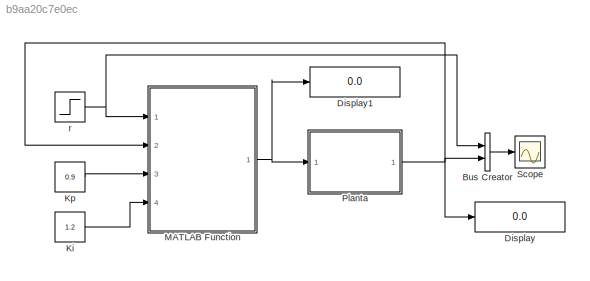
MODEL slx_b9aa20c7e0ec
KIND model
CONFIG AbsTol = auto
CONFIG FixedStep = auto
CONFIG MaxStep = auto
CONFIG MinStep = auto
CONFIG RelTol = 1e-3
CONFIG SampleTimeConstraint = Unconstrained
CONFIG Solver = ode5
CONFIG SolverMode = Auto
CONFIG SolverName = ode5
CONFIG StartTime = 0.0
CONFIG StopTime = inf
BLOCK [BusCreator] Bus Creator
  DisplayOption = bar
  Inputs = 2
  Ports = [2, 1]
BLOCK [Display] Display
  Decimation = 1
  Ports = [1]
BLOCK [Display] Display1
  Decimation = 1
  Ports = [1]
BLOCK [Constant] Ki
  Value = 1.2
BLOCK [Constant] Kp
  Value = 0.9
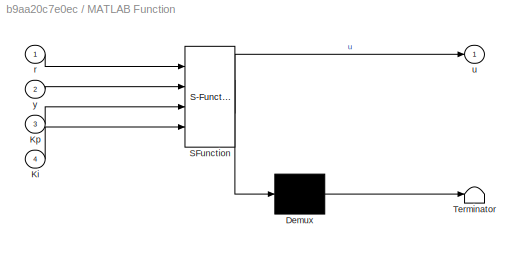
BLOCK [SubSystem] MATLAB Function
  ErrorFcn = Stateflow.Translate.translate
  PermitHierarchicalResolution = ExplicitOnly
  Ports = [4, 1]
  RequestExecContextInheritance = off
  SFBlockType = MATLAB Function
  TreatAsAtomicUnit = on
BLOCK [Demux] MATLAB Function/ Demux 
  Outputs = 1
  Ports = [1, 1]
BLOCK [S-Function] MATLAB Function/ SFunction 
  FunctionName = sf_sfun
  PortCounts = [4 2]
  Ports = [4, 2]
  Tag = Stateflow S-Function lab4_2 2
BLOCK [Terminator] MATLAB Function/ Terminator 
BLOCK [Inport] MATLAB Function/Ki
  IconDisplay = Port number
  Port = 4
BLOCK [Inport] MATLAB Function/Kp
  IconDisplay = Port number
  Port = 3
BLOCK [Inport] MATLAB Function/r
  IconDisplay = Port number
BLOCK [Outport] MATLAB Function/u
  IconDisplay = Port number
BLOCK [Inport] MATLAB Function/y
  IconDisplay = Port number
  Port = 2
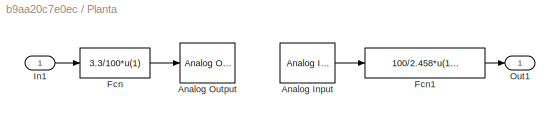
BLOCK [SubSystem] Planta
  Ports = [1, 1]
  RequestExecContextInheritance = off
BLOCK [Reference] Planta/Analog Input  REF=rtwinlib/Analog Input
  AttributesFormatString = National Instruments\nPCI-6229 [auto]
  Channels = 1
  DataType = 1
  DrvAddress = 4294967295
  DrvName = National_Instruments/PCI-6229
  DrvOptions = [0 0 0 0 0]
  MaxMissedTicks = 10
  Ports = [0, 1]
  RangeMode = 1
  SampleTime = 0.01
  ShowMissedTicks = off
  SourceBlock = rtwinlib/Analog Input
  SourceType = RTWin Analog Input
  VoltRange = 1
  YieldWhenWaiting = off
BLOCK [Reference] Planta/Analog Output  REF=rtwinlib/Analog Output
  AttributesFormatString = National Instruments\nPCI-6229 [auto]
  Channels = 1
  DrvAddress = 4294967295
  DrvName = National_Instruments/PCI-6229
  DrvOptions = [0 0 0 0 0]
  FinalValue = []
  InitialValue = []
  MaxMissedTicks = 10
  Ports = [1]
  RangeMode = 1
  SampleTime = 0.01
  ShowMissedTicks = off
  SourceBlock = rtwinlib/Analog Output
  SourceType = RTWin Analog Output
  VoltRange = 1
  YieldWhenWaiting = off
BLOCK [Fcn] Planta/Fcn
  Expr = 3.3/100*u(1)
  SampleTime = 0.01
BLOCK [Fcn] Planta/Fcn1
  Expr = 100/2.458*u(1)-24.41
  SampleTime = 0.01
BLOCK [Inport] Planta/In1
  IconDisplay = Port number
BLOCK [Outport] Planta/Out1
  IconDisplay = Port number
BLOCK [Scope] Scope
  DataFormat = StructureWithTime
  Floating = off
  LimitDataPoints = off
  NumInputPorts = 1
  Ports = [1]
  SampleTime = 0
  SaveName = signals
  SaveToWorkspace = on
  YMax = 120
  YMin = 0
BLOCK [Step] r
  After = 60
  SampleTime = 0.01
  Time = 0
LINE Bus Creator:1 -> Scope:1
LINE Ki:1 -> MATLAB Function:4
LINE Kp:1 -> MATLAB Function:3
NET MATLAB Function:1 -> Display1:1, Planta:1
LINE Planta/Analog Input:1 -> Planta/Fcn1:1
LINE Planta/Fcn1:1 -> Planta/Out1:1
LINE Planta/Fcn:1 -> Planta/Analog Output:1
LINE Planta/In1:1 -> Planta/Fcn:1
NET Planta:1 -> Bus Creator:2, Display:1, MATLAB Function:2
NET r:1 -> Bus Creator:1, MATLAB Function:1
note: NET lines group one-source signal fan-out (src -> all destinations, sorted); 1:1 wires keep LINE
CHART MATLAB Function states=1 transitions=1
  STATE_LABEL 'eML_blk_kernel()'
  STATE_LABEL 'SCRIPT:\nfunction u = controlador_PI(r,y,Kp,Ki)\n\nT = 0.01;\n\npersistent e_ant;\npersistent u_ant;\npersistent Int_ant;\n\nif isempty(u_ant)\n    u_ant = 0;\n    e_ant = 0;\n    Int_ant = 0;\nend\n\ne_act = r - y;\n\n% Diferencias en retroceso\n% Prop = (e_act - e_ant)*Kp;\n% Int = e_act*Ki*T;\n% u_act = u_ant + Prop + Int;\n% Kp = 0.9, Ki = 1.2\n\n% Aproximacion de Tustin\nProp = e_act*Kp;\n%Der = Kd/T*(e_act - e_ant);...<+219ch>'
